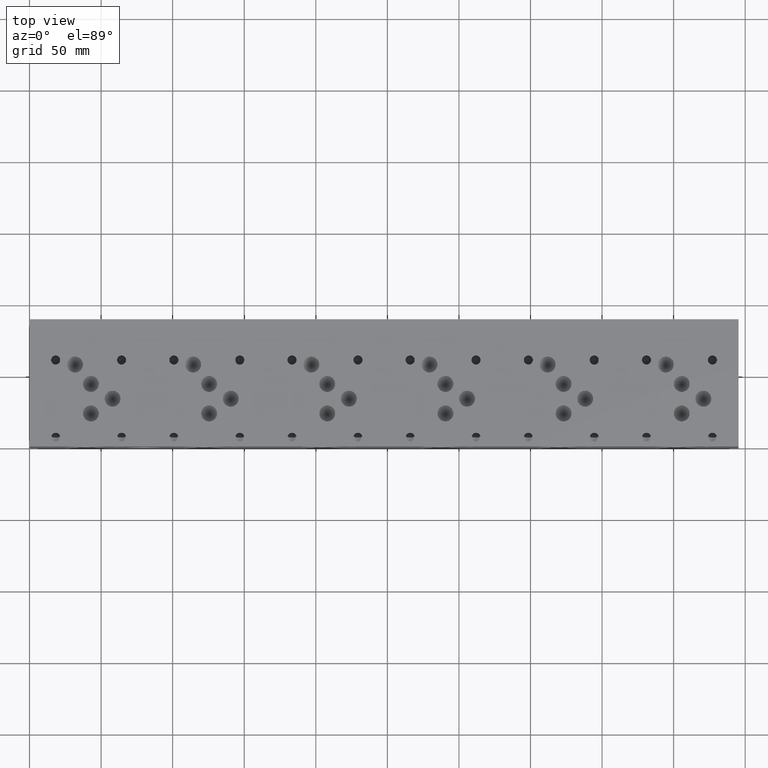
[diagram: clean part render]
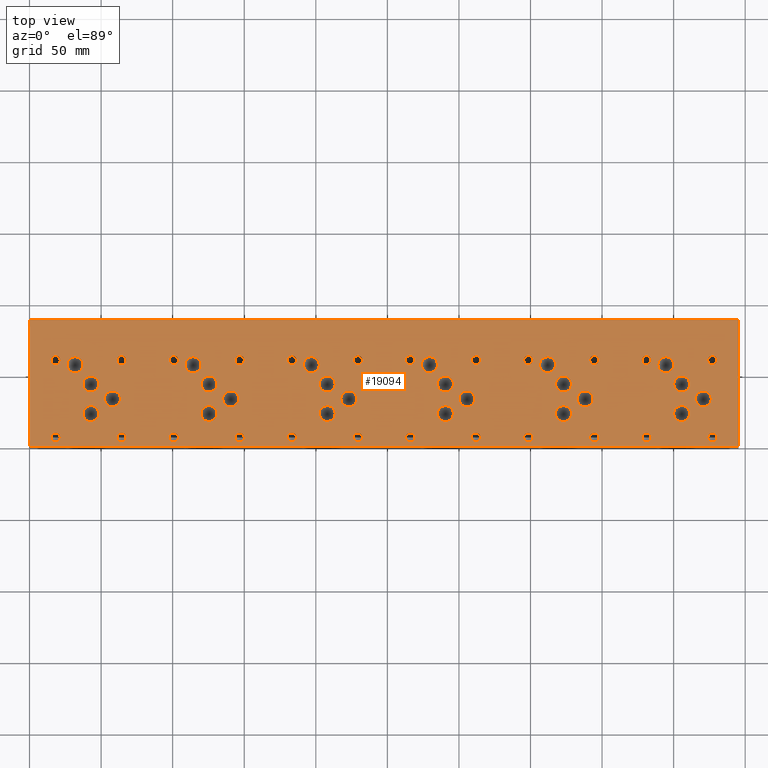
[diagram: same view with one face highlighted and labeled with its STEP entity id]
A machine part, top view. The second image highlights one B-rep face of the part: STEP entity #19094.
In plain terms, the highlighted planar face has unit normal (0, 0, 1).
Its self-contained STEP definition (entity closure, byte-faithful):
#888=CIRCLE('',#20093,3.175);
#889=CIRCLE('',#20094,3.175);
#895=CIRCLE('',#20104,3.175);
#896=CIRCLE('',#20105,3.175);
#902=CIRCLE('',#20115,3.175);
#903=CIRCLE('',#20116,3.175);
#909=CIRCLE('',#20126,3.175);
#910=CIRCLE('',#20127,3.175);
#916=CIRCLE('',#20137,3.175);
#917=CIRCLE('',#20138,3.175);
#923=CIRCLE('',#20148,3.175);
#924=CIRCLE('',#20149,3.175);
#930=CIRCLE('',#20159,3.175);
#931=CIRCLE('',#20160,3.175);
#937=CIRCLE('',#20170,3.175);
#938=CIRCLE('',#20171,3.175);
#944=CIRCLE('',#20181,3.175);
#945=CIRCLE('',#20182,3.175);
#951=CIRCLE('',#20192,3.175);
#952=CIRCLE('',#20193,3.175);
#958=CIRCLE('',#20203,3.175);
#959=CIRCLE('',#20204,3.175);
#965=CIRCLE('',#20214,3.175);
#966=CIRCLE('',#20215,3.175);
#972=CIRCLE('',#20225,3.175);
#973=CIRCLE('',#20226,3.175);
#979=CIRCLE('',#20236,3.175);
#980=CIRCLE('',#20237,3.175);
#986=CIRCLE('',#20247,3.175);
#987=CIRCLE('',#20248,3.175);
#993=CIRCLE('',#20258,3.175);
#994=CIRCLE('',#20259,3.175);
#1000=CIRCLE('',#20269,3.175);
#1001=CIRCLE('',#20270,3.175);
#1007=CIRCLE('',#20280,3.175);
#1008=CIRCLE('',#20281,3.175);
#1014=CIRCLE('',#20291,3.175);
#1015=CIRCLE('',#20292,3.175);
#1021=CIRCLE('',#20302,3.175);
#1022=CIRCLE('',#20303,3.175);
#1025=CIRCLE('',#20309,5.5626);
#1026=CIRCLE('',#20310,5.5626);
#1029=CIRCLE('',#20315,5.5626);
#1030=CIRCLE('',#20316,5.5626);
#1033=CIRCLE('',#20321,5.5626);
#1034=CIRCLE('',#20322,5.5626);
#1037=CIRCLE('',#20327,5.5626);
#1038=CIRCLE('',#20328,5.5626);
#1041=CIRCLE('',#20333,5.5626);
#1042=CIRCLE('',#20334,5.5626);
#1045=CIRCLE('',#20339,5.5626);
#1046=CIRCLE('',#20340,5.5626);
#1049=CIRCLE('',#20345,5.5626);
#1050=CIRCLE('',#20346,5.5626);
#1053=CIRCLE('',#20351,5.5626);
#1054=CIRCLE('',#20352,5.5626);
#1057=CIRCLE('',#20357,5.5626);
#1058=CIRCLE('',#20358,5.5626);
#1061=CIRCLE('',#20363,5.5626);
#1062=CIRCLE('',#20364,5.5626);
#1065=CIRCLE('',#20369,5.5626);
#1066=CIRCLE('',#20370,5.5626);
#1069=CIRCLE('',#20375,5.5626);
#1070=CIRCLE('',#20376,5.5626);
#1073=CIRCLE('',#20381,5.5626);
#1074=CIRCLE('',#20382,5.5626);
#1077=CIRCLE('',#20387,5.5626);
#1078=CIRCLE('',#20388,5.5626);
#1081=CIRCLE('',#20393,5.5626);
#1082=CIRCLE('',#20394,5.5626);
#1085=CIRCLE('',#20399,5.5626);
#1086=CIRCLE('',#20400,5.5626);
#1089=CIRCLE('',#20405,5.5626);
#1090=CIRCLE('',#20406,5.5626);
#1093=CIRCLE('',#20411,5.5626);
#1094=CIRCLE('',#20412,5.5626);
#1097=CIRCLE('',#20417,5.5626);
#1098=CIRCLE('',#20418,5.5626);
#1101=CIRCLE('',#20423,5.5626);
#1102=CIRCLE('',#20424,5.5626);
#1105=CIRCLE('',#20429,5.5626);
#1106=CIRCLE('',#20430,5.5626);
#1109=CIRCLE('',#20435,5.5626);
#1110=CIRCLE('',#20436,5.5626);
#1113=CIRCLE('',#20441,5.5626);
#1114=CIRCLE('',#20442,5.5626);
#1117=CIRCLE('',#20447,5.5626);
#1118=CIRCLE('',#20448,5.5626);
#1124=CIRCLE('',#20457,3.175);
#1125=CIRCLE('',#20458,3.175);
#1131=CIRCLE('',#20468,3.175);
#1132=CIRCLE('',#20469,3.175);
#1138=CIRCLE('',#20479,3.175);
#1139=CIRCLE('',#20480,3.175);
#1145=CIRCLE('',#20490,3.175);
#1146=CIRCLE('',#20491,3.175);
#1753=FACE_BOUND('',#3946,.T.);
#1754=FACE_BOUND('',#3947,.T.);
#1755=FACE_BOUND('',#3948,.T.);
#1756=FACE_BOUND('',#3949,.T.);
#1757=FACE_BOUND('',#3950,.T.);
#1758=FACE_BOUND('',#3951,.T.);
#1759=FACE_BOUND('',#3952,.T.);
#1760=FACE_BOUND('',#3953,.T.);
#1761=FACE_BOUND('',#3954,.T.);
#1762=FACE_BOUND('',#3955,.T.);
#1763=FACE_BOUND('',#3956,.T.);
#1764=FACE_BOUND('',#3957,.T.);
#1765=FACE_BOUND('',#3958,.T.);
#1766=FACE_BOUND('',#3959,.T.);
#1767=FACE_BOUND('',#3960,.T.);
#1768=FACE_BOUND('',#3961,.T.);
#1769=FACE_BOUND('',#3962,.T.);
#1770=FACE_BOUND('',#3963,.T.);
#1771=FACE_BOUND('',#3964,.T.);
#1772=FACE_BOUND('',#3965,.T.);
#1773=FACE_BOUND('',#3966,.T.);
#1774=FACE_BOUND('',#3967,.T.);
#1775=FACE_BOUND('',#3968,.T.);
#1776=FACE_BOUND('',#3969,.T.);
#1777=FACE_BOUND('',#3970,.T.);
#1778=FACE_BOUND('',#3971,.T.);
#1779=FACE_BOUND('',#3972,.T.);
#1780=FACE_BOUND('',#3973,.T.);
#1781=FACE_BOUND('',#3974,.T.);
#1782=FACE_BOUND('',#3975,.T.);
#1783=FACE_BOUND('',#3976,.T.);
#1784=FACE_BOUND('',#3977,.T.);
#1785=FACE_BOUND('',#3978,.T.);
#1786=FACE_BOUND('',#3979,.T.);
#1787=FACE_BOUND('',#3980,.T.);
#1788=FACE_BOUND('',#3981,.T.);
#1789=FACE_BOUND('',#3982,.T.);
#1790=FACE_BOUND('',#3983,.T.);
#1791=FACE_BOUND('',#3984,.T.);
#1792=FACE_BOUND('',#3985,.T.);
#1793=FACE_BOUND('',#3986,.T.);
#1794=FACE_BOUND('',#3987,.T.);
#1795=FACE_BOUND('',#3988,.T.);
#1796=FACE_BOUND('',#3989,.T.);
#1797=FACE_BOUND('',#3990,.T.);
#1798=FACE_BOUND('',#3991,.T.);
#1799=FACE_BOUND('',#3992,.T.);
#1800=FACE_BOUND('',#3993,.T.);
#2798=FACE_OUTER_BOUND('',#3945,.T.);
#3945=EDGE_LOOP('',(#16890,#16891,#16892,#16893));
#3946=EDGE_LOOP('',(#16894,#16895));
#3947=EDGE_LOOP('',(#16896,#16897));
#3948=EDGE_LOOP('',(#16898,#16899));
#3949=EDGE_LOOP('',(#16900,#16901));
#3950=EDGE_LOOP('',(#16902,#16903));
#3951=EDGE_LOOP('',(#16904,#16905));
#3952=EDGE_LOOP('',(#16906,#16907));
#3953=EDGE_LOOP('',(#16908,#16909));
#3954=EDGE_LOOP('',(#16910,#16911));
#3955=EDGE_LOOP('',(#16912,#16913));
#3956=EDGE_LOOP('',(#16914,#16915));
#3957=EDGE_LOOP('',(#16916,#16917));
#3958=EDGE_LOOP('',(#16918,#16919));
#3959=EDGE_LOOP('',(#16920,#16921));
#3960=EDGE_LOOP('',(#16922,#16923));
#3961=EDGE_LOOP('',(#16924,#16925));
#3962=EDGE_LOOP('',(#16926,#16927));
#3963=EDGE_LOOP('',(#16928,#16929));
#3964=EDGE_LOOP('',(#16930,#16931));
#3965=EDGE_LOOP('',(#16932,#16933));
#3966=EDGE_LOOP('',(#16934,#16935));
#3967=EDGE_LOOP('',(#16936,#16937));
#3968=EDGE_LOOP('',(#16938,#16939));
#3969=EDGE_LOOP('',(#16940,#16941));
#3970=EDGE_LOOP('',(#16942,#16943));
#3971=EDGE_LOOP('',(#16944,#16945));
#3972=EDGE_LOOP('',(#16946,#16947));
#3973=EDGE_LOOP('',(#16948,#16949));
#3974=EDGE_LOOP('',(#16950,#16951));
#3975=EDGE_LOOP('',(#16952,#16953));
#3976=EDGE_LOOP('',(#16954,#16955));
#3977=EDGE_LOOP('',(#16956,#16957));
#3978=EDGE_LOOP('',(#16958,#16959));
#3979=EDGE_LOOP('',(#16960,#16961));
#3980=EDGE_LOOP('',(#16962,#16963));
#3981=EDGE_LOOP('',(#16964,#16965));
#3982=EDGE_LOOP('',(#16966,#16967));
#3983=EDGE_LOOP('',(#16968,#16969));
#3984=EDGE_LOOP('',(#16970,#16971));
#3985=EDGE_LOOP('',(#16972,#16973));
#3986=EDGE_LOOP('',(#16974,#16975));
#3987=EDGE_LOOP('',(#16976,#16977));
#3988=EDGE_LOOP('',(#16978,#16979));
#3989=EDGE_LOOP('',(#16980,#16981));
#3990=EDGE_LOOP('',(#16982,#16983));
#3991=EDGE_LOOP('',(#16984,#16985));
#3992=EDGE_LOOP('',(#16986,#16987));
#3993=EDGE_LOOP('',(#16988,#16989));
#4030=LINE('',#24936,#5612);
#5124=LINE('',#30566,#6706);
#5158=LINE('',#30788,#6740);
#5576=LINE('',#33350,#7158);
#5612=VECTOR('',#20562,10.);
#6706=VECTOR('',#22392,10.);
#6740=VECTOR('',#22462,10.);
#7158=VECTOR('',#24852,10.);
#7183=VERTEX_POINT('',#24933);
#7184=VERTEX_POINT('',#24935);
#8216=VERTEX_POINT('',#30564);
#8258=VERTEX_POINT('',#30787);
#8711=VERTEX_POINT('',#32522);
#8712=VERTEX_POINT('',#32523);
#8719=VERTEX_POINT('',#32544);
#8720=VERTEX_POINT('',#32545);
#8727=VERTEX_POINT('',#32566);
#8728=VERTEX_POINT('',#32567);
#8735=VERTEX_POINT('',#32588);
#8736=VERTEX_POINT('',#32589);
#8743=VERTEX_POINT('',#32610);
#8744=VERTEX_POINT('',#32611);
#8751=VERTEX_POINT('',#32632);
#8752=VERTEX_POINT('',#32633);
#8759=VERTEX_POINT('',#32654);
#8760=VERTEX_POINT('',#32655);
#8767=VERTEX_POINT('',#32676);
#8768=VERTEX_POINT('',#32677);
#8775=VERTEX_POINT('',#32698);
#8776=VERTEX_POINT('',#32699);
#8783=VERTEX_POINT('',#32720);
#8784=VERTEX_POINT('',#32721);
#8791=VERTEX_POINT('',#32742);
#8792=VERTEX_POINT('',#32743);
#8799=VERTEX_POINT('',#32764);
#8800=VERTEX_POINT('',#32765);
#8807=VERTEX_POINT('',#32786);
#8808=VERTEX_POINT('',#32787);
#8815=VERTEX_POINT('',#32808);
#8816=VERTEX_POINT('',#32809);
#8823=VERTEX_POINT('',#32830);
#8824=VERTEX_POINT('',#32831);
#8831=VERTEX_POINT('',#32852);
#8832=VERTEX_POINT('',#32853);
#8839=VERTEX_POINT('',#32874);
#8840=VERTEX_POINT('',#32875);
#8847=VERTEX_POINT('',#32896);
#8848=VERTEX_POINT('',#32897);
#8855=VERTEX_POINT('',#32918);
#8856=VERTEX_POINT('',#32919);
#8863=VERTEX_POINT('',#32940);
#8864=VERTEX_POINT('',#32941);
#8868=VERTEX_POINT('',#32955);
#8869=VERTEX_POINT('',#32956);
#8873=VERTEX_POINT('',#32968);
#8874=VERTEX_POINT('',#32969);
#8878=VERTEX_POINT('',#32981);
#8879=VERTEX_POINT('',#32982);
#8883=VERTEX_POINT('',#32994);
#8884=VERTEX_POINT('',#32995);
#8888=VERTEX_POINT('',#33007);
#8889=VERTEX_POINT('',#33008);
#8893=VERTEX_POINT('',#33020);
#8894=VERTEX_POINT('',#33021);
#8898=VERTEX_POINT('',#33033);
#8899=VERTEX_POINT('',#33034);
#8903=VERTEX_POINT('',#33046);
#8904=VERTEX_POINT('',#33047);
#8908=VERTEX_POINT('',#33059);
#8909=VERTEX_POINT('',#33060);
#8913=VERTEX_POINT('',#33072);
#8914=VERTEX_POINT('',#33073);
#8918=VERTEX_POINT('',#33085);
#8919=VERTEX_POINT('',#33086);
#8923=VERTEX_POINT('',#33098);
#8924=VERTEX_POINT('',#33099);
#8928=VERTEX_POINT('',#33111);
#8929=VERTEX_POINT('',#33112);
#8933=VERTEX_POINT('',#33124);
#8934=VERTEX_POINT('',#33125);
#8938=VERTEX_POINT('',#33137);
#8939=VERTEX_POINT('',#33138);
#8943=VERTEX_POINT('',#33150);
#8944=VERTEX_POINT('',#33151);
#8948=VERTEX_POINT('',#33163);
#8949=VERTEX_POINT('',#33164);
#8953=VERTEX_POINT('',#33176);
#8954=VERTEX_POINT('',#33177);
#8958=VERTEX_POINT('',#33189);
#8959=VERTEX_POINT('',#33190);
#8963=VERTEX_POINT('',#33202);
#8964=VERTEX_POINT('',#33203);
#8968=VERTEX_POINT('',#33215);
#8969=VERTEX_POINT('',#33216);
#8973=VERTEX_POINT('',#33228);
#8974=VERTEX_POINT('',#33229);
#8978=VERTEX_POINT('',#33241);
#8979=VERTEX_POINT('',#33242);
#8983=VERTEX_POINT('',#33254);
#8984=VERTEX_POINT('',#33255);
#8991=VERTEX_POINT('',#33274);
#8992=VERTEX_POINT('',#33275);
#8999=VERTEX_POINT('',#33296);
#9000=VERTEX_POINT('',#33297);
#9007=VERTEX_POINT('',#33318);
#9008=VERTEX_POINT('',#33319);
#9015=VERTEX_POINT('',#33340);
#9016=VERTEX_POINT('',#33341);
#9052=EDGE_CURVE('',#7184,#7183,#4030,.T.);
#10570=EDGE_CURVE('',#7183,#8216,#5124,.T.);
#10628=EDGE_CURVE('',#8258,#7184,#5158,.T.);
#11296=EDGE_CURVE('',#8711,#8712,#888,.T.);
#11297=EDGE_CURVE('',#8712,#8711,#889,.T.);
#11306=EDGE_CURVE('',#8719,#8720,#895,.T.);
#11307=EDGE_CURVE('',#8720,#8719,#896,.T.);
#11316=EDGE_CURVE('',#8727,#8728,#902,.T.);
#11317=EDGE_CURVE('',#8728,#8727,#903,.T.);
#11326=EDGE_CURVE('',#8735,#8736,#909,.T.);
#11327=EDGE_CURVE('',#8736,#8735,#910,.T.);
#11336=EDGE_CURVE('',#8743,#8744,#916,.T.);
#11337=EDGE_CURVE('',#8744,#8743,#917,.T.);
#11346=EDGE_CURVE('',#8751,#8752,#923,.T.);
#11347=EDGE_CURVE('',#8752,#8751,#924,.T.);
#11356=EDGE_CURVE('',#8759,#8760,#930,.T.);
#11357=EDGE_CURVE('',#8760,#8759,#931,.T.);
#11366=EDGE_CURVE('',#8767,#8768,#937,.T.);
#11367=EDGE_CURVE('',#8768,#8767,#938,.T.);
#11376=EDGE_CURVE('',#8775,#8776,#944,.T.);
#11377=EDGE_CURVE('',#8776,#8775,#945,.T.);
#11386=EDGE_CURVE('',#8783,#8784,#951,.T.);
#11387=EDGE_CURVE('',#8784,#8783,#952,.T.);
#11396=EDGE_CURVE('',#8791,#8792,#958,.T.);
#11397=EDGE_CURVE('',#8792,#8791,#959,.T.);
#11406=EDGE_CURVE('',#8799,#8800,#965,.T.);
#11407=EDGE_CURVE('',#8800,#8799,#966,.T.);
#11416=EDGE_CURVE('',#8807,#8808,#972,.T.);
#11417=EDGE_CURVE('',#8808,#8807,#973,.T.);
#11426=EDGE_CURVE('',#8815,#8816,#979,.T.);
#11427=EDGE_CURVE('',#8816,#8815,#980,.T.);
#11436=EDGE_CURVE('',#8823,#8824,#986,.T.);
#11437=EDGE_CURVE('',#8824,#8823,#987,.T.);
#11446=EDGE_CURVE('',#8831,#8832,#993,.T.);
#11447=EDGE_CURVE('',#8832,#8831,#994,.T.);
#11456=EDGE_CURVE('',#8839,#8840,#1000,.T.);
#11457=EDGE_CURVE('',#8840,#8839,#1001,.T.);
#11466=EDGE_CURVE('',#8847,#8848,#1007,.T.);
#11467=EDGE_CURVE('',#8848,#8847,#1008,.T.);
#11476=EDGE_CURVE('',#8855,#8856,#1014,.T.);
#11477=EDGE_CURVE('',#8856,#8855,#1015,.T.);
#11486=EDGE_CURVE('',#8863,#8864,#1021,.T.);
#11487=EDGE_CURVE('',#8864,#8863,#1022,.T.);
#11493=EDGE_CURVE('',#8868,#8869,#1025,.T.);
#11494=EDGE_CURVE('',#8869,#8868,#1026,.T.);
#11499=EDGE_CURVE('',#8873,#8874,#1029,.T.);
#11500=EDGE_CURVE('',#8874,#8873,#1030,.T.);
#11505=EDGE_CURVE('',#8878,#8879,#1033,.T.);
#11506=EDGE_CURVE('',#8879,#8878,#1034,.T.);
#11511=EDGE_CURVE('',#8883,#8884,#1037,.T.);
#11512=EDGE_CURVE('',#8884,#8883,#1038,.T.);
#11517=EDGE_CURVE('',#8888,#8889,#1041,.T.);
#11518=EDGE_CURVE('',#8889,#8888,#1042,.T.);
#11523=EDGE_CURVE('',#8893,#8894,#1045,.T.);
#11524=EDGE_CURVE('',#8894,#8893,#1046,.T.);
#11529=EDGE_CURVE('',#8898,#8899,#1049,.T.);
#11530=EDGE_CURVE('',#8899,#8898,#1050,.T.);
#11535=EDGE_CURVE('',#8903,#8904,#1053,.T.);
#11536=EDGE_CURVE('',#8904,#8903,#1054,.T.);
#11541=EDGE_CURVE('',#8908,#8909,#1057,.T.);
#11542=EDGE_CURVE('',#8909,#8908,#1058,.T.);
#11547=EDGE_CURVE('',#8913,#8914,#1061,.T.);
#11548=EDGE_CURVE('',#8914,#8913,#1062,.T.);
#11553=EDGE_CURVE('',#8918,#8919,#1065,.T.);
#11554=EDGE_CURVE('',#8919,#8918,#1066,.T.);
#11559=EDGE_CURVE('',#8923,#8924,#1069,.T.);
#11560=EDGE_CURVE('',#8924,#8923,#1070,.T.);
#11565=EDGE_CURVE('',#8928,#8929,#1073,.T.);
#11566=EDGE_CURVE('',#8929,#8928,#1074,.T.);
#11571=EDGE_CURVE('',#8933,#8934,#1077,.T.);
#11572=EDGE_CURVE('',#8934,#8933,#1078,.T.);
#11577=EDGE_CURVE('',#8938,#8939,#1081,.T.);
#11578=EDGE_CURVE('',#8939,#8938,#1082,.T.);
#11583=EDGE_CURVE('',#8943,#8944,#1085,.T.);
#11584=EDGE_CURVE('',#8944,#8943,#1086,.T.);
#11589=EDGE_CURVE('',#8948,#8949,#1089,.T.);
#11590=EDGE_CURVE('',#8949,#8948,#1090,.T.);
#11595=EDGE_CURVE('',#8953,#8954,#1093,.T.);
#11596=EDGE_CURVE('',#8954,#8953,#1094,.T.);
#11601=EDGE_CURVE('',#8958,#8959,#1097,.T.);
#11602=EDGE_CURVE('',#8959,#8958,#1098,.T.);
#11607=EDGE_CURVE('',#8963,#8964,#1101,.T.);
#11608=EDGE_CURVE('',#8964,#8963,#1102,.T.);
#11613=EDGE_CURVE('',#8968,#8969,#1105,.T.);
#11614=EDGE_CURVE('',#8969,#8968,#1106,.T.);
#11619=EDGE_CURVE('',#8973,#8974,#1109,.T.);
#11620=EDGE_CURVE('',#8974,#8973,#1110,.T.);
#11625=EDGE_CURVE('',#8978,#8979,#1113,.T.);
#11626=EDGE_CURVE('',#8979,#8978,#1114,.T.);
#11631=EDGE_CURVE('',#8983,#8984,#1117,.T.);
#11632=EDGE_CURVE('',#8984,#8983,#1118,.T.);
#11640=EDGE_CURVE('',#8991,#8992,#1124,.T.);
#11641=EDGE_CURVE('',#8992,#8991,#1125,.T.);
#11650=EDGE_CURVE('',#8999,#9000,#1131,.T.);
#11651=EDGE_CURVE('',#9000,#8999,#1132,.T.);
#11660=EDGE_CURVE('',#9007,#9008,#1138,.T.);
#11661=EDGE_CURVE('',#9008,#9007,#1139,.T.);
#11670=EDGE_CURVE('',#9015,#9016,#1145,.T.);
#11671=EDGE_CURVE('',#9016,#9015,#1146,.T.);
#11675=EDGE_CURVE('',#8216,#8258,#5576,.T.);
#16890=ORIENTED_EDGE('',*,*,#9052,.T.);
#16891=ORIENTED_EDGE('',*,*,#10570,.T.);
#16892=ORIENTED_EDGE('',*,*,#11675,.T.);
#16893=ORIENTED_EDGE('',*,*,#10628,.T.);
#16894=ORIENTED_EDGE('',*,*,#11296,.T.);
#16895=ORIENTED_EDGE('',*,*,#11297,.T.);
#16896=ORIENTED_EDGE('',*,*,#11306,.T.);
#16897=ORIENTED_EDGE('',*,*,#11307,.T.);
#16898=ORIENTED_EDGE('',*,*,#11316,.T.);
#16899=ORIENTED_EDGE('',*,*,#11317,.T.);
#16900=ORIENTED_EDGE('',*,*,#11326,.T.);
#16901=ORIENTED_EDGE('',*,*,#11327,.T.);
#16902=ORIENTED_EDGE('',*,*,#11336,.T.);
#16903=ORIENTED_EDGE('',*,*,#11337,.T.);
#16904=ORIENTED_EDGE('',*,*,#11346,.T.);
#16905=ORIENTED_EDGE('',*,*,#11347,.T.);
#16906=ORIENTED_EDGE('',*,*,#11356,.T.);
#16907=ORIENTED_EDGE('',*,*,#11357,.T.);
#16908=ORIENTED_EDGE('',*,*,#11366,.T.);
#16909=ORIENTED_EDGE('',*,*,#11367,.T.);
#16910=ORIENTED_EDGE('',*,*,#11376,.T.);
#16911=ORIENTED_EDGE('',*,*,#11377,.T.);
#16912=ORIENTED_EDGE('',*,*,#11386,.T.);
#16913=ORIENTED_EDGE('',*,*,#11387,.T.);
#16914=ORIENTED_EDGE('',*,*,#11396,.T.);
#16915=ORIENTED_EDGE('',*,*,#11397,.T.);
#16916=ORIENTED_EDGE('',*,*,#11406,.T.);
#16917=ORIENTED_EDGE('',*,*,#11407,.T.);
#16918=ORIENTED_EDGE('',*,*,#11416,.T.);
#16919=ORIENTED_EDGE('',*,*,#11417,.T.);
#16920=ORIENTED_EDGE('',*,*,#11426,.T.);
#16921=ORIENTED_EDGE('',*,*,#11427,.T.);
#16922=ORIENTED_EDGE('',*,*,#11436,.T.);
#16923=ORIENTED_EDGE('',*,*,#11437,.T.);
#16924=ORIENTED_EDGE('',*,*,#11446,.T.);
#16925=ORIENTED_EDGE('',*,*,#11447,.T.);
#16926=ORIENTED_EDGE('',*,*,#11456,.T.);
#16927=ORIENTED_EDGE('',*,*,#11457,.T.);
#16928=ORIENTED_EDGE('',*,*,#11466,.T.);
#16929=ORIENTED_EDGE('',*,*,#11467,.T.);
#16930=ORIENTED_EDGE('',*,*,#11476,.T.);
#16931=ORIENTED_EDGE('',*,*,#11477,.T.);
#16932=ORIENTED_EDGE('',*,*,#11486,.T.);
#16933=ORIENTED_EDGE('',*,*,#11487,.T.);
#16934=ORIENTED_EDGE('',*,*,#11493,.T.);
#16935=ORIENTED_EDGE('',*,*,#11494,.T.);
#16936=ORIENTED_EDGE('',*,*,#11499,.T.);
#16937=ORIENTED_EDGE('',*,*,#11500,.T.);
#16938=ORIENTED_EDGE('',*,*,#11505,.T.);
#16939=ORIENTED_EDGE('',*,*,#11506,.T.);
#16940=ORIENTED_EDGE('',*,*,#11511,.T.);
#16941=ORIENTED_EDGE('',*,*,#11512,.T.);
#16942=ORIENTED_EDGE('',*,*,#11517,.T.);
#16943=ORIENTED_EDGE('',*,*,#11518,.T.);
#16944=ORIENTED_EDGE('',*,*,#11523,.T.);
#16945=ORIENTED_EDGE('',*,*,#11524,.T.);
#16946=ORIENTED_EDGE('',*,*,#11529,.T.);
#16947=ORIENTED_EDGE('',*,*,#11530,.T.);
#16948=ORIENTED_EDGE('',*,*,#11535,.T.);
#16949=ORIENTED_EDGE('',*,*,#11536,.T.);
#16950=ORIENTED_EDGE('',*,*,#11541,.T.);
#16951=ORIENTED_EDGE('',*,*,#11542,.T.);
#16952=ORIENTED_EDGE('',*,*,#11547,.T.);
#16953=ORIENTED_EDGE('',*,*,#11548,.T.);
#16954=ORIENTED_EDGE('',*,*,#11553,.T.);
#16955=ORIENTED_EDGE('',*,*,#11554,.T.);
#16956=ORIENTED_EDGE('',*,*,#11559,.T.);
#16957=ORIENTED_EDGE('',*,*,#11560,.T.);
#16958=ORIENTED_EDGE('',*,*,#11565,.T.);
#16959=ORIENTED_EDGE('',*,*,#11566,.T.);
#16960=ORIENTED_EDGE('',*,*,#11571,.T.);
#16961=ORIENTED_EDGE('',*,*,#11572,.T.);
#16962=ORIENTED_EDGE('',*,*,#11577,.T.);
#16963=ORIENTED_EDGE('',*,*,#11578,.T.);
#16964=ORIENTED_EDGE('',*,*,#11583,.T.);
#16965=ORIENTED_EDGE('',*,*,#11584,.T.);
#16966=ORIENTED_EDGE('',*,*,#11589,.T.);
#16967=ORIENTED_EDGE('',*,*,#11590,.T.);
#16968=ORIENTED_EDGE('',*,*,#11595,.T.);
#16969=ORIENTED_EDGE('',*,*,#11596,.T.);
#16970=ORIENTED_EDGE('',*,*,#11601,.T.);
#16971=ORIENTED_EDGE('',*,*,#11602,.T.);
#16972=ORIENTED_EDGE('',*,*,#11607,.T.);
#16973=ORIENTED_EDGE('',*,*,#11608,.T.);
#16974=ORIENTED_EDGE('',*,*,#11613,.T.);
#16975=ORIENTED_EDGE('',*,*,#11614,.T.);
#16976=ORIENTED_EDGE('',*,*,#11619,.T.);
#16977=ORIENTED_EDGE('',*,*,#11620,.T.);
#16978=ORIENTED_EDGE('',*,*,#11625,.T.);
#16979=ORIENTED_EDGE('',*,*,#11626,.T.);
#16980=ORIENTED_EDGE('',*,*,#11631,.T.);
#16981=ORIENTED_EDGE('',*,*,#11632,.T.);
#16982=ORIENTED_EDGE('',*,*,#11640,.T.);
#16983=ORIENTED_EDGE('',*,*,#11641,.T.);
#16984=ORIENTED_EDGE('',*,*,#11650,.T.);
#16985=ORIENTED_EDGE('',*,*,#11651,.T.);
#16986=ORIENTED_EDGE('',*,*,#11660,.T.);
#16987=ORIENTED_EDGE('',*,*,#11661,.T.);
#16988=ORIENTED_EDGE('',*,*,#11670,.T.);
#16989=ORIENTED_EDGE('',*,*,#11671,.T.);
#17477=PLANE('',#20497);
#19094=ADVANCED_FACE('',(#2798,#1753,#1754,#1755,#1756,#1757,#1758,#1759,
#1760,#1761,#1762,#1763,#1764,#1765,#1766,#1767,#1768,#1769,#1770,#1771,
#1772,#1773,#1774,#1775,#1776,#1777,#1778,#1779,#1780,#1781,#1782,#1783,
#1784,#1785,#1786,#1787,#1788,#1789,#1790,#1791,#1792,#1793,#1794,#1795,
#1796,#1797,#1798,#1799,#1800),#17477,.T.);
#20093=AXIS2_PLACEMENT_3D('',#32524,#23928,#23929);
#20094=AXIS2_PLACEMENT_3D('',#32525,#23930,#23931);
#20104=AXIS2_PLACEMENT_3D('',#32546,#23953,#23954);
#20105=AXIS2_PLACEMENT_3D('',#32547,#23955,#23956);
#20115=AXIS2_PLACEMENT_3D('',#32568,#23978,#23979);
#20116=AXIS2_PLACEMENT_3D('',#32569,#23980,#23981);
#20126=AXIS2_PLACEMENT_3D('',#32590,#24003,#24004);
#20127=AXIS2_PLACEMENT_3D('',#32591,#24005,#24006);
#20137=AXIS2_PLACEMENT_3D('',#32612,#24028,#24029);
#20138=AXIS2_PLACEMENT_3D('',#32613,#24030,#24031);
#20148=AXIS2_PLACEMENT_3D('',#32634,#24053,#24054);
#20149=AXIS2_PLACEMENT_3D('',#32635,#24055,#24056);
#20159=AXIS2_PLACEMENT_3D('',#32656,#24078,#24079);
#20160=AXIS2_PLACEMENT_3D('',#32657,#24080,#24081);
#20170=AXIS2_PLACEMENT_3D('',#32678,#24103,#24104);
#20171=AXIS2_PLACEMENT_3D('',#32679,#24105,#24106);
#20181=AXIS2_PLACEMENT_3D('',#32700,#24128,#24129);
#20182=AXIS2_PLACEMENT_3D('',#32701,#24130,#24131);
#20192=AXIS2_PLACEMENT_3D('',#32722,#24153,#24154);
#20193=AXIS2_PLACEMENT_3D('',#32723,#24155,#24156);
#20203=AXIS2_PLACEMENT_3D('',#32744,#24178,#24179);
#20204=AXIS2_PLACEMENT_3D('',#32745,#24180,#24181);
#20214=AXIS2_PLACEMENT_3D('',#32766,#24203,#24204);
#20215=AXIS2_PLACEMENT_3D('',#32767,#24205,#24206);
#20225=AXIS2_PLACEMENT_3D('',#32788,#24228,#24229);
#20226=AXIS2_PLACEMENT_3D('',#32789,#24230,#24231);
#20236=AXIS2_PLACEMENT_3D('',#32810,#24253,#24254);
#20237=AXIS2_PLACEMENT_3D('',#32811,#24255,#24256);
#20247=AXIS2_PLACEMENT_3D('',#32832,#24278,#24279);
#20248=AXIS2_PLACEMENT_3D('',#32833,#24280,#24281);
#20258=AXIS2_PLACEMENT_3D('',#32854,#24303,#24304);
#20259=AXIS2_PLACEMENT_3D('',#32855,#24305,#24306);
#20269=AXIS2_PLACEMENT_3D('',#32876,#24328,#24329);
#20270=AXIS2_PLACEMENT_3D('',#32877,#24330,#24331);
#20280=AXIS2_PLACEMENT_3D('',#32898,#24353,#24354);
#20281=AXIS2_PLACEMENT_3D('',#32899,#24355,#24356);
#20291=AXIS2_PLACEMENT_3D('',#32920,#24378,#24379);
#20292=AXIS2_PLACEMENT_3D('',#32921,#24380,#24381);
#20302=AXIS2_PLACEMENT_3D('',#32942,#24403,#24404);
#20303=AXIS2_PLACEMENT_3D('',#32943,#24405,#24406);
#20309=AXIS2_PLACEMENT_3D('',#32957,#24420,#24421);
#20310=AXIS2_PLACEMENT_3D('',#32958,#24422,#24423);
#20315=AXIS2_PLACEMENT_3D('',#32970,#24434,#24435);
#20316=AXIS2_PLACEMENT_3D('',#32971,#24436,#24437);
#20321=AXIS2_PLACEMENT_3D('',#32983,#24448,#24449);
#20322=AXIS2_PLACEMENT_3D('',#32984,#24450,#24451);
#20327=AXIS2_PLACEMENT_3D('',#32996,#24462,#24463);
#20328=AXIS2_PLACEMENT_3D('',#32997,#24464,#24465);
#20333=AXIS2_PLACEMENT_3D('',#33009,#24476,#24477);
#20334=AXIS2_PLACEMENT_3D('',#33010,#24478,#24479);
#20339=AXIS2_PLACEMENT_3D('',#33022,#24490,#24491);
#20340=AXIS2_PLACEMENT_3D('',#33023,#24492,#24493);
#20345=AXIS2_PLACEMENT_3D('',#33035,#24504,#24505);
#20346=AXIS2_PLACEMENT_3D('',#33036,#24506,#24507);
#20351=AXIS2_PLACEMENT_3D('',#33048,#24518,#24519);
#20352=AXIS2_PLACEMENT_3D('',#33049,#24520,#24521);
#20357=AXIS2_PLACEMENT_3D('',#33061,#24532,#24533);
#20358=AXIS2_PLACEMENT_3D('',#33062,#24534,#24535);
#20363=AXIS2_PLACEMENT_3D('',#33074,#24546,#24547);
#20364=AXIS2_PLACEMENT_3D('',#33075,#24548,#24549);
#20369=AXIS2_PLACEMENT_3D('',#33087,#24560,#24561);
#20370=AXIS2_PLACEMENT_3D('',#33088,#24562,#24563);
#20375=AXIS2_PLACEMENT_3D('',#33100,#24574,#24575);
#20376=AXIS2_PLACEMENT_3D('',#33101,#24576,#24577);
#20381=AXIS2_PLACEMENT_3D('',#33113,#24588,#24589);
#20382=AXIS2_PLACEMENT_3D('',#33114,#24590,#24591);
#20387=AXIS2_PLACEMENT_3D('',#33126,#24602,#24603);
#20388=AXIS2_PLACEMENT_3D('',#33127,#24604,#24605);
#20393=AXIS2_PLACEMENT_3D('',#33139,#24616,#24617);
#20394=AXIS2_PLACEMENT_3D('',#33140,#24618,#24619);
#20399=AXIS2_PLACEMENT_3D('',#33152,#24630,#24631);
#20400=AXIS2_PLACEMENT_3D('',#33153,#24632,#24633);
#20405=AXIS2_PLACEMENT_3D('',#33165,#24644,#24645);
#20406=AXIS2_PLACEMENT_3D('',#33166,#24646,#24647);
#20411=AXIS2_PLACEMENT_3D('',#33178,#24658,#24659);
#20412=AXIS2_PLACEMENT_3D('',#33179,#24660,#24661);
#20417=AXIS2_PLACEMENT_3D('',#33191,#24672,#24673);
#20418=AXIS2_PLACEMENT_3D('',#33192,#24674,#24675);
#20423=AXIS2_PLACEMENT_3D('',#33204,#24686,#24687);
#20424=AXIS2_PLACEMENT_3D('',#33205,#24688,#24689);
#20429=AXIS2_PLACEMENT_3D('',#33217,#24700,#24701);
#20430=AXIS2_PLACEMENT_3D('',#33218,#24702,#24703);
#20435=AXIS2_PLACEMENT_3D('',#33230,#24714,#24715);
#20436=AXIS2_PLACEMENT_3D('',#33231,#24716,#24717);
#20441=AXIS2_PLACEMENT_3D('',#33243,#24728,#24729);
#20442=AXIS2_PLACEMENT_3D('',#33244,#24730,#24731);
#20447=AXIS2_PLACEMENT_3D('',#33256,#24742,#24743);
#20448=AXIS2_PLACEMENT_3D('',#33257,#24744,#24745);
#20457=AXIS2_PLACEMENT_3D('',#33276,#24764,#24765);
#20458=AXIS2_PLACEMENT_3D('',#33277,#24766,#24767);
#20468=AXIS2_PLACEMENT_3D('',#33298,#24789,#24790);
#20469=AXIS2_PLACEMENT_3D('',#33299,#24791,#24792);
#20479=AXIS2_PLACEMENT_3D('',#33320,#24814,#24815);
#20480=AXIS2_PLACEMENT_3D('',#33321,#24816,#24817);
#20490=AXIS2_PLACEMENT_3D('',#33342,#24839,#24840);
#20491=AXIS2_PLACEMENT_3D('',#33343,#24841,#24842);
#20497=AXIS2_PLACEMENT_3D('',#33353,#24857,#24858);
#20562=DIRECTION('',(1.,0.,0.));
#22392=DIRECTION('',(0.,1.,0.));
#22462=DIRECTION('',(0.,-1.,0.));
#23928=DIRECTION('center_axis',(0.,0.,-1.));
#23929=DIRECTION('ref_axis',(1.,0.,0.));
#23930=DIRECTION('center_axis',(0.,0.,-1.));
#23931=DIRECTION('ref_axis',(1.,0.,0.));
#23953=DIRECTION('center_axis',(0.,0.,-1.));
#23954=DIRECTION('ref_axis',(1.,0.,0.));
#23955=DIRECTION('center_axis',(0.,0.,-1.));
#23956=DIRECTION('ref_axis',(1.,0.,0.));
#23978=DIRECTION('center_axis',(0.,0.,-1.));
#23979=DIRECTION('ref_axis',(1.,0.,0.));
#23980=DIRECTION('center_axis',(0.,0.,-1.));
#23981=DIRECTION('ref_axis',(1.,0.,0.));
#24003=DIRECTION('center_axis',(0.,0.,-1.));
#24004=DIRECTION('ref_axis',(1.,0.,0.));
#24005=DIRECTION('center_axis',(0.,0.,-1.));
#24006=DIRECTION('ref_axis',(1.,0.,0.));
#24028=DIRECTION('center_axis',(0.,0.,-1.));
#24029=DIRECTION('ref_axis',(1.,0.,0.));
#24030=DIRECTION('center_axis',(0.,0.,-1.));
#24031=DIRECTION('ref_axis',(1.,0.,0.));
#24053=DIRECTION('center_axis',(0.,0.,-1.));
#24054=DIRECTION('ref_axis',(1.,0.,0.));
#24055=DIRECTION('center_axis',(0.,0.,-1.));
#24056=DIRECTION('ref_axis',(1.,0.,0.));
#24078=DIRECTION('center_axis',(0.,0.,-1.));
#24079=DIRECTION('ref_axis',(1.,0.,0.));
#24080=DIRECTION('center_axis',(0.,0.,-1.));
#24081=DIRECTION('ref_axis',(1.,0.,0.));
#24103=DIRECTION('center_axis',(0.,0.,-1.));
#24104=DIRECTION('ref_axis',(1.,0.,0.));
#24105=DIRECTION('center_axis',(0.,0.,-1.));
#24106=DIRECTION('ref_axis',(1.,0.,0.));
#24128=DIRECTION('center_axis',(0.,0.,-1.));
#24129=DIRECTION('ref_axis',(1.,0.,0.));
#24130=DIRECTION('center_axis',(0.,0.,-1.));
#24131=DIRECTION('ref_axis',(1.,0.,0.));
#24153=DIRECTION('center_axis',(0.,0.,-1.));
#24154=DIRECTION('ref_axis',(1.,0.,0.));
#24155=DIRECTION('center_axis',(0.,0.,-1.));
#24156=DIRECTION('ref_axis',(1.,0.,0.));
#24178=DIRECTION('center_axis',(0.,0.,-1.));
#24179=DIRECTION('ref_axis',(1.,0.,0.));
#24180=DIRECTION('center_axis',(0.,0.,-1.));
#24181=DIRECTION('ref_axis',(1.,0.,0.));
#24203=DIRECTION('center_axis',(0.,0.,-1.));
#24204=DIRECTION('ref_axis',(1.,0.,0.));
#24205=DIRECTION('center_axis',(0.,0.,-1.));
#24206=DIRECTION('ref_axis',(1.,0.,0.));
#24228=DIRECTION('center_axis',(0.,0.,-1.));
#24229=DIRECTION('ref_axis',(1.,0.,0.));
#24230=DIRECTION('center_axis',(0.,0.,-1.));
#24231=DIRECTION('ref_axis',(1.,0.,0.));
#24253=DIRECTION('center_axis',(0.,0.,-1.));
#24254=DIRECTION('ref_axis',(1.,0.,0.));
#24255=DIRECTION('center_axis',(0.,0.,-1.));
#24256=DIRECTION('ref_axis',(1.,0.,0.));
#24278=DIRECTION('center_axis',(0.,0.,-1.));
#24279=DIRECTION('ref_axis',(1.,0.,0.));
#24280=DIRECTION('center_axis',(0.,0.,-1.));
#24281=DIRECTION('ref_axis',(1.,0.,0.));
#24303=DIRECTION('center_axis',(0.,0.,-1.));
#24304=DIRECTION('ref_axis',(1.,0.,0.));
#24305=DIRECTION('center_axis',(0.,0.,-1.));
#24306=DIRECTION('ref_axis',(1.,0.,0.));
#24328=DIRECTION('center_axis',(0.,0.,-1.));
#24329=DIRECTION('ref_axis',(1.,0.,0.));
#24330=DIRECTION('center_axis',(0.,0.,-1.));
#24331=DIRECTION('ref_axis',(1.,0.,0.));
#24353=DIRECTION('center_axis',(0.,0.,-1.));
#24354=DIRECTION('ref_axis',(1.,0.,0.));
#24355=DIRECTION('center_axis',(0.,0.,-1.));
#24356=DIRECTION('ref_axis',(1.,0.,0.));
#24378=DIRECTION('center_axis',(0.,0.,-1.));
#24379=DIRECTION('ref_axis',(1.,0.,0.));
#24380=DIRECTION('center_axis',(0.,0.,-1.));
#24381=DIRECTION('ref_axis',(1.,0.,0.));
#24403=DIRECTION('center_axis',(0.,0.,-1.));
#24404=DIRECTION('ref_axis',(1.,0.,0.));
#24405=DIRECTION('center_axis',(0.,0.,-1.));
#24406=DIRECTION('ref_axis',(1.,0.,0.));
#24420=DIRECTION('center_axis',(0.,0.,-1.));
#24421=DIRECTION('ref_axis',(1.,0.,0.));
#24422=DIRECTION('center_axis',(0.,0.,-1.));
#24423=DIRECTION('ref_axis',(1.,0.,0.));
#24434=DIRECTION('center_axis',(0.,0.,-1.));
#24435=DIRECTION('ref_axis',(1.,0.,0.));
#24436=DIRECTION('center_axis',(0.,0.,-1.));
#24437=DIRECTION('ref_axis',(1.,0.,0.));
#24448=DIRECTION('center_axis',(0.,0.,-1.));
#24449=DIRECTION('ref_axis',(1.,0.,0.));
#24450=DIRECTION('center_axis',(0.,0.,-1.));
#24451=DIRECTION('ref_axis',(1.,0.,0.));
#24462=DIRECTION('center_axis',(0.,0.,-1.));
#24463=DIRECTION('ref_axis',(1.,0.,0.));
#24464=DIRECTION('center_axis',(0.,0.,-1.));
#24465=DIRECTION('ref_axis',(1.,0.,0.));
#24476=DIRECTION('center_axis',(0.,0.,-1.));
#24477=DIRECTION('ref_axis',(1.,0.,0.));
#24478=DIRECTION('center_axis',(0.,0.,-1.));
#24479=DIRECTION('ref_axis',(1.,0.,0.));
#24490=DIRECTION('center_axis',(0.,0.,-1.));
#24491=DIRECTION('ref_axis',(1.,0.,0.));
#24492=DIRECTION('center_axis',(0.,0.,-1.));
#24493=DIRECTION('ref_axis',(1.,0.,0.));
#24504=DIRECTION('center_axis',(0.,0.,-1.));
#24505=DIRECTION('ref_axis',(1.,0.,0.));
#24506=DIRECTION('center_axis',(0.,0.,-1.));
#24507=DIRECTION('ref_axis',(1.,0.,0.));
#24518=DIRECTION('center_axis',(0.,0.,-1.));
#24519=DIRECTION('ref_axis',(1.,0.,0.));
#24520=DIRECTION('center_axis',(0.,0.,-1.));
#24521=DIRECTION('ref_axis',(1.,0.,0.));
#24532=DIRECTION('center_axis',(0.,0.,-1.));
#24533=DIRECTION('ref_axis',(1.,0.,0.));
#24534=DIRECTION('center_axis',(0.,0.,-1.));
#24535=DIRECTION('ref_axis',(1.,0.,0.));
#24546=DIRECTION('center_axis',(0.,0.,-1.));
#24547=DIRECTION('ref_axis',(1.,0.,0.));
#24548=DIRECTION('center_axis',(0.,0.,-1.));
#24549=DIRECTION('ref_axis',(1.,0.,0.));
#24560=DIRECTION('center_axis',(0.,0.,-1.));
#24561=DIRECTION('ref_axis',(1.,0.,0.));
#24562=DIRECTION('center_axis',(0.,0.,-1.));
#24563=DIRECTION('ref_axis',(1.,0.,0.));
#24574=DIRECTION('center_axis',(0.,0.,-1.));
#24575=DIRECTION('ref_axis',(1.,0.,0.));
#24576=DIRECTION('center_axis',(0.,0.,-1.));
#24577=DIRECTION('ref_axis',(1.,0.,0.));
#24588=DIRECTION('center_axis',(0.,0.,-1.));
#24589=DIRECTION('ref_axis',(1.,0.,0.));
#24590=DIRECTION('center_axis',(0.,0.,-1.));
#24591=DIRECTION('ref_axis',(1.,0.,0.));
#24602=DIRECTION('center_axis',(0.,0.,-1.));
#24603=DIRECTION('ref_axis',(1.,0.,0.));
#24604=DIRECTION('center_axis',(0.,0.,-1.));
#24605=DIRECTION('ref_axis',(1.,0.,0.));
#24616=DIRECTION('center_axis',(0.,0.,-1.));
#24617=DIRECTION('ref_axis',(1.,0.,0.));
#24618=DIRECTION('center_axis',(0.,0.,-1.));
#24619=DIRECTION('ref_axis',(1.,0.,0.));
#24630=DIRECTION('center_axis',(0.,0.,-1.));
#24631=DIRECTION('ref_axis',(1.,0.,0.));
#24632=DIRECTION('center_axis',(0.,0.,-1.));
#24633=DIRECTION('ref_axis',(1.,0.,0.));
#24644=DIRECTION('center_axis',(0.,0.,-1.));
#24645=DIRECTION('ref_axis',(1.,0.,0.));
#24646=DIRECTION('center_axis',(0.,0.,-1.));
#24647=DIRECTION('ref_axis',(1.,0.,0.));
#24658=DIRECTION('center_axis',(0.,0.,-1.));
#24659=DIRECTION('ref_axis',(1.,0.,0.));
#24660=DIRECTION('center_axis',(0.,0.,-1.));
#24661=DIRECTION('ref_axis',(1.,0.,0.));
#24672=DIRECTION('center_axis',(0.,0.,-1.));
#24673=DIRECTION('ref_axis',(1.,0.,0.));
#24674=DIRECTION('center_axis',(0.,0.,-1.));
#24675=DIRECTION('ref_axis',(1.,0.,0.));
#24686=DIRECTION('center_axis',(0.,0.,-1.));
#24687=DIRECTION('ref_axis',(1.,0.,0.));
#24688=DIRECTION('center_axis',(0.,0.,-1.));
#24689=DIRECTION('ref_axis',(1.,0.,0.));
#24700=DIRECTION('center_axis',(0.,0.,-1.));
#24701=DIRECTION('ref_axis',(1.,0.,0.));
#24702=DIRECTION('center_axis',(0.,0.,-1.));
#24703=DIRECTION('ref_axis',(1.,0.,0.));
#24714=DIRECTION('center_axis',(0.,0.,-1.));
#24715=DIRECTION('ref_axis',(1.,0.,0.));
#24716=DIRECTION('center_axis',(0.,0.,-1.));
#24717=DIRECTION('ref_axis',(1.,0.,0.));
#24728=DIRECTION('center_axis',(0.,0.,-1.));
#24729=DIRECTION('ref_axis',(1.,0.,0.));
#24730=DIRECTION('center_axis',(0.,0.,-1.));
#24731=DIRECTION('ref_axis',(1.,0.,0.));
#24742=DIRECTION('center_axis',(0.,0.,-1.));
#24743=DIRECTION('ref_axis',(1.,0.,0.));
#24744=DIRECTION('center_axis',(0.,0.,-1.));
#24745=DIRECTION('ref_axis',(1.,0.,0.));
#24764=DIRECTION('center_axis',(0.,0.,-1.));
#24765=DIRECTION('ref_axis',(1.,0.,0.));
#24766=DIRECTION('center_axis',(0.,0.,-1.));
#24767=DIRECTION('ref_axis',(1.,0.,0.));
#24789=DIRECTION('center_axis',(0.,0.,-1.));
#24790=DIRECTION('ref_axis',(1.,0.,0.));
#24791=DIRECTION('center_axis',(0.,0.,-1.));
#24792=DIRECTION('ref_axis',(1.,0.,0.));
#24814=DIRECTION('center_axis',(0.,0.,-1.));
#24815=DIRECTION('ref_axis',(1.,0.,0.));
#24816=DIRECTION('center_axis',(0.,0.,-1.));
#24817=DIRECTION('ref_axis',(1.,0.,0.));
#24839=DIRECTION('center_axis',(0.,0.,-1.));
#24840=DIRECTION('ref_axis',(1.,0.,0.));
#24841=DIRECTION('center_axis',(0.,0.,-1.));
#24842=DIRECTION('ref_axis',(1.,0.,0.));
#24852=DIRECTION('',(-1.,0.,0.));
#24857=DIRECTION('center_axis',(0.,0.,1.));
#24858=DIRECTION('ref_axis',(1.,0.,0.));
#24933=CARTESIAN_POINT('',(495.3,0.,88.9));
#24935=CARTESIAN_POINT('',(0.,0.,88.9));
#24936=CARTESIAN_POINT('',(0.,0.,88.9));
#30564=CARTESIAN_POINT('',(495.3,88.9,88.9));
#30566=CARTESIAN_POINT('',(495.3,0.,88.9));
#30787=CARTESIAN_POINT('',(0.,88.9,88.9));
#30788=CARTESIAN_POINT('',(0.,88.9,88.9));
#32522=CARTESIAN_POINT('',(480.2124,6.35,88.9));
#32523=CARTESIAN_POINT('',(473.8624,6.35,88.9));
#32524=CARTESIAN_POINT('Origin',(477.0374,6.35,88.9));
#32525=CARTESIAN_POINT('Origin',(477.0374,6.35,88.9));
#32544=CARTESIAN_POINT('',(434.1622,60.325,88.9));
#32545=CARTESIAN_POINT('',(427.8122,60.325,88.9));
#32546=CARTESIAN_POINT('Origin',(430.9872,60.325,88.9));
#32547=CARTESIAN_POINT('Origin',(430.9872,60.325,88.9));
#32566=CARTESIAN_POINT('',(397.6624,6.35,88.9));
#32567=CARTESIAN_POINT('',(391.3124,6.35,88.9));
#32568=CARTESIAN_POINT('Origin',(394.4874,6.35,88.9));
#32569=CARTESIAN_POINT('Origin',(394.4874,6.35,88.9));
#32588=CARTESIAN_POINT('',(351.6122,60.325,88.9));
#32589=CARTESIAN_POINT('',(345.2622,60.325,88.9));
#32590=CARTESIAN_POINT('Origin',(348.4372,60.325,88.9));
#32591=CARTESIAN_POINT('Origin',(348.4372,60.325,88.9));
#32610=CARTESIAN_POINT('',(315.1124,6.35,88.9));
#32611=CARTESIAN_POINT('',(308.7624,6.35,88.9));
#32612=CARTESIAN_POINT('Origin',(311.9374,6.35,88.9));
#32613=CARTESIAN_POINT('Origin',(311.9374,6.35,88.9));
#32632=CARTESIAN_POINT('',(269.0622,60.325,88.9));
#32633=CARTESIAN_POINT('',(262.7122,60.325,88.9));
#32634=CARTESIAN_POINT('Origin',(265.8872,60.325,88.9));
#32635=CARTESIAN_POINT('Origin',(265.8872,60.325,88.9));
#32654=CARTESIAN_POINT('',(232.5624,6.35,88.9));
#32655=CARTESIAN_POINT('',(226.2124,6.35,88.9));
#32656=CARTESIAN_POINT('Origin',(229.3874,6.35,88.9));
#32657=CARTESIAN_POINT('Origin',(229.3874,6.35,88.9));
#32676=CARTESIAN_POINT('',(186.5122,60.325,88.9));
#32677=CARTESIAN_POINT('',(180.1622,60.325,88.9));
#32678=CARTESIAN_POINT('Origin',(183.3372,60.325,88.9));
#32679=CARTESIAN_POINT('Origin',(183.3372,60.325,88.9));
#32698=CARTESIAN_POINT('',(150.0124,6.35,88.9));
#32699=CARTESIAN_POINT('',(143.6624,6.35,88.9));
#32700=CARTESIAN_POINT('Origin',(146.8374,6.35,88.9));
#32701=CARTESIAN_POINT('Origin',(146.8374,6.35,88.9));
#32720=CARTESIAN_POINT('',(103.9622,60.325,88.9));
#32721=CARTESIAN_POINT('',(97.6122,60.325,88.9));
#32722=CARTESIAN_POINT('Origin',(100.7872,60.325,88.9));
#32723=CARTESIAN_POINT('Origin',(100.7872,60.325,88.9));
#32742=CARTESIAN_POINT('',(150.0124,60.325,88.9));
#32743=CARTESIAN_POINT('',(143.6624,60.325,88.9));
#32744=CARTESIAN_POINT('Origin',(146.8374,60.325,88.9));
#32745=CARTESIAN_POINT('Origin',(146.8374,60.325,88.9));
#32764=CARTESIAN_POINT('',(103.9622,6.35,88.9));
#32765=CARTESIAN_POINT('',(97.6122,6.35,88.9));
#32766=CARTESIAN_POINT('Origin',(100.7872,6.35,88.9));
#32767=CARTESIAN_POINT('Origin',(100.7872,6.35,88.9));
#32786=CARTESIAN_POINT('',(232.5624,60.325,88.9));
#32787=CARTESIAN_POINT('',(226.2124,60.325,88.9));
#32788=CARTESIAN_POINT('Origin',(229.3874,60.325,88.9));
#32789=CARTESIAN_POINT('Origin',(229.3874,60.325,88.9));
#32808=CARTESIAN_POINT('',(186.5122,6.35,88.9));
#32809=CARTESIAN_POINT('',(180.1622,6.35,88.9));
#32810=CARTESIAN_POINT('Origin',(183.3372,6.35,88.9));
#32811=CARTESIAN_POINT('Origin',(183.3372,6.35,88.9));
#32830=CARTESIAN_POINT('',(315.1124,60.325,88.9));
#32831=CARTESIAN_POINT('',(308.7624,60.325,88.9));
#32832=CARTESIAN_POINT('Origin',(311.9374,60.325,88.9));
#32833=CARTESIAN_POINT('Origin',(311.9374,60.325,88.9));
#32852=CARTESIAN_POINT('',(269.0622,6.35,88.9));
#32853=CARTESIAN_POINT('',(262.7122,6.35,88.9));
#32854=CARTESIAN_POINT('Origin',(265.8872,6.35,88.9));
#32855=CARTESIAN_POINT('Origin',(265.8872,6.35,88.9));
#32874=CARTESIAN_POINT('',(397.6624,60.325,88.9));
#32875=CARTESIAN_POINT('',(391.3124,60.325,88.9));
#32876=CARTESIAN_POINT('Origin',(394.4874,60.325,88.9));
#32877=CARTESIAN_POINT('Origin',(394.4874,60.325,88.9));
#32896=CARTESIAN_POINT('',(351.6122,6.35,88.9));
#32897=CARTESIAN_POINT('',(345.2622,6.35,88.9));
#32898=CARTESIAN_POINT('Origin',(348.4372,6.35,88.9));
#32899=CARTESIAN_POINT('Origin',(348.4372,6.35,88.9));
#32918=CARTESIAN_POINT('',(480.2124,60.325,88.9));
#32919=CARTESIAN_POINT('',(473.8624,60.325,88.9));
#32920=CARTESIAN_POINT('Origin',(477.0374,60.325,88.9));
#32921=CARTESIAN_POINT('Origin',(477.0374,60.325,88.9));
#32940=CARTESIAN_POINT('',(434.1622,6.35,88.9));
#32941=CARTESIAN_POINT('',(427.8122,6.35,88.9));
#32942=CARTESIAN_POINT('Origin',(430.9872,6.35,88.9));
#32943=CARTESIAN_POINT('Origin',(430.9872,6.35,88.9));
#32955=CARTESIAN_POINT('',(461.1878,43.6372,88.9));
#32956=CARTESIAN_POINT('',(450.0626,43.6372,88.9));
#32957=CARTESIAN_POINT('Origin',(455.6252,43.6372,88.9));
#32958=CARTESIAN_POINT('Origin',(455.6252,43.6372,88.9));
#32968=CARTESIAN_POINT('',(476.2754,33.3248,88.9));
#32969=CARTESIAN_POINT('',(465.1502,33.3248,88.9));
#32970=CARTESIAN_POINT('Origin',(470.7128,33.3248,88.9));
#32971=CARTESIAN_POINT('Origin',(470.7128,33.3248,88.9));
#32981=CARTESIAN_POINT('',(378.6378,43.6372,88.9));
#32982=CARTESIAN_POINT('',(367.5126,43.6372,88.9));
#32983=CARTESIAN_POINT('Origin',(373.0752,43.6372,88.9));
#32984=CARTESIAN_POINT('Origin',(373.0752,43.6372,88.9));
#32994=CARTESIAN_POINT('',(393.7254,33.3248,88.9));
#32995=CARTESIAN_POINT('',(382.6002,33.3248,88.9));
#32996=CARTESIAN_POINT('Origin',(388.1628,33.3248,88.9));
#32997=CARTESIAN_POINT('Origin',(388.1628,33.3248,88.9));
#33007=CARTESIAN_POINT('',(296.0878,43.6372,88.9));
#33008=CARTESIAN_POINT('',(284.9626,43.6372,88.9));
#33009=CARTESIAN_POINT('Origin',(290.5252,43.6372,88.9));
#33010=CARTESIAN_POINT('Origin',(290.5252,43.6372,88.9));
#33020=CARTESIAN_POINT('',(311.1754,33.3248,88.9));
#33021=CARTESIAN_POINT('',(300.0502,33.3248,88.9));
#33022=CARTESIAN_POINT('Origin',(305.6128,33.3248,88.9));
#33023=CARTESIAN_POINT('Origin',(305.6128,33.3248,88.9));
#33033=CARTESIAN_POINT('',(213.5378,43.6372,88.9));
#33034=CARTESIAN_POINT('',(202.4126,43.6372,88.9));
#33035=CARTESIAN_POINT('Origin',(207.9752,43.6372,88.9));
#33036=CARTESIAN_POINT('Origin',(207.9752,43.6372,88.9));
#33046=CARTESIAN_POINT('',(228.6254,33.3248,88.9));
#33047=CARTESIAN_POINT('',(217.5002,33.3248,88.9));
#33048=CARTESIAN_POINT('Origin',(223.0628,33.3248,88.9));
#33049=CARTESIAN_POINT('Origin',(223.0628,33.3248,88.9));
#33059=CARTESIAN_POINT('',(130.9878,43.6372,88.9));
#33060=CARTESIAN_POINT('',(119.8626,43.6372,88.9));
#33061=CARTESIAN_POINT('Origin',(125.4252,43.6372,88.9));
#33062=CARTESIAN_POINT('Origin',(125.4252,43.6372,88.9));
#33072=CARTESIAN_POINT('',(146.0754,33.3248,88.9));
#33073=CARTESIAN_POINT('',(134.9502,33.3248,88.9));
#33074=CARTESIAN_POINT('Origin',(140.5128,33.3248,88.9));
#33075=CARTESIAN_POINT('Origin',(140.5128,33.3248,88.9));
#33085=CARTESIAN_POINT('',(48.4251,43.64228,88.9));
#33086=CARTESIAN_POINT('',(37.2999,43.64228,88.9));
#33087=CARTESIAN_POINT('Origin',(42.8625,43.64228,88.9));
#33088=CARTESIAN_POINT('Origin',(42.8625,43.64228,88.9));
#33098=CARTESIAN_POINT('',(63.5254,33.3248,88.9));
#33099=CARTESIAN_POINT('',(52.4002,33.3248,88.9));
#33100=CARTESIAN_POINT('Origin',(57.9628,33.3248,88.9));
#33101=CARTESIAN_POINT('Origin',(57.9628,33.3248,88.9));
#33111=CARTESIAN_POINT('',(37.3126,57.15,88.9));
#33112=CARTESIAN_POINT('',(26.1874,57.15,88.9));
#33113=CARTESIAN_POINT('Origin',(31.75,57.15,88.9));
#33114=CARTESIAN_POINT('Origin',(31.75,57.15,88.9));
#33124=CARTESIAN_POINT('',(48.43018,23.00732,88.9));
#33125=CARTESIAN_POINT('',(37.30498,23.00732,88.9));
#33126=CARTESIAN_POINT('Origin',(42.86758,23.00732,88.9));
#33127=CARTESIAN_POINT('Origin',(42.86758,23.00732,88.9));
#33137=CARTESIAN_POINT('',(119.8626,57.15,88.9));
#33138=CARTESIAN_POINT('',(108.7374,57.15,88.9));
#33139=CARTESIAN_POINT('Origin',(114.3,57.15,88.9));
#33140=CARTESIAN_POINT('Origin',(114.3,57.15,88.9));
#33150=CARTESIAN_POINT('',(130.9878,23.0124,88.9));
#33151=CARTESIAN_POINT('',(119.8626,23.0124,88.9));
#33152=CARTESIAN_POINT('Origin',(125.4252,23.0124,88.9));
#33153=CARTESIAN_POINT('Origin',(125.4252,23.0124,88.9));
#33163=CARTESIAN_POINT('',(202.4126,57.15,88.9));
#33164=CARTESIAN_POINT('',(191.2874,57.15,88.9));
#33165=CARTESIAN_POINT('Origin',(196.85,57.15,88.9));
#33166=CARTESIAN_POINT('Origin',(196.85,57.15,88.9));
#33176=CARTESIAN_POINT('',(213.5378,23.0124,88.9));
#33177=CARTESIAN_POINT('',(202.4126,23.0124,88.9));
#33178=CARTESIAN_POINT('Origin',(207.9752,23.0124,88.9));
#33179=CARTESIAN_POINT('Origin',(207.9752,23.0124,88.9));
#33189=CARTESIAN_POINT('',(284.9626,57.15,88.9));
#33190=CARTESIAN_POINT('',(273.8374,57.15,88.9));
#33191=CARTESIAN_POINT('Origin',(279.4,57.15,88.9));
#33192=CARTESIAN_POINT('Origin',(279.4,57.15,88.9));
#33202=CARTESIAN_POINT('',(296.0878,23.0124,88.9));
#33203=CARTESIAN_POINT('',(284.9626,23.0124,88.9));
#33204=CARTESIAN_POINT('Origin',(290.5252,23.0124,88.9));
#33205=CARTESIAN_POINT('Origin',(290.5252,23.0124,88.9));
#33215=CARTESIAN_POINT('',(367.5126,57.15,88.9));
#33216=CARTESIAN_POINT('',(356.3874,57.15,88.9));
#33217=CARTESIAN_POINT('Origin',(361.95,57.15,88.9));
#33218=CARTESIAN_POINT('Origin',(361.95,57.15,88.9));
#33228=CARTESIAN_POINT('',(378.6378,23.0124,88.9));
#33229=CARTESIAN_POINT('',(367.5126,23.0124,88.9));
#33230=CARTESIAN_POINT('Origin',(373.0752,23.0124,88.9));
#33231=CARTESIAN_POINT('Origin',(373.0752,23.0124,88.9));
#33241=CARTESIAN_POINT('',(450.0626,57.15,88.9));
#33242=CARTESIAN_POINT('',(438.9374,57.15,88.9));
#33243=CARTESIAN_POINT('Origin',(444.5,57.15,88.9));
#33244=CARTESIAN_POINT('Origin',(444.5,57.15,88.9));
#33254=CARTESIAN_POINT('',(461.1878,23.0124,88.9));
#33255=CARTESIAN_POINT('',(450.0626,23.0124,88.9));
#33256=CARTESIAN_POINT('Origin',(455.6252,23.0124,88.9));
#33257=CARTESIAN_POINT('Origin',(455.6252,23.0124,88.9));
#33274=CARTESIAN_POINT('',(67.4624,6.3627,88.9));
#33275=CARTESIAN_POINT('',(61.1124,6.3627,88.9));
#33276=CARTESIAN_POINT('Origin',(64.2874,6.3627,88.9));
#33277=CARTESIAN_POINT('Origin',(64.2874,6.3627,88.9));
#33296=CARTESIAN_POINT('',(21.4122,60.325,88.9));
#33297=CARTESIAN_POINT('',(15.0622,60.325,88.9));
#33298=CARTESIAN_POINT('Origin',(18.2372,60.325,88.9));
#33299=CARTESIAN_POINT('Origin',(18.2372,60.325,88.9));
#33318=CARTESIAN_POINT('',(67.4624,60.325,88.9));
#33319=CARTESIAN_POINT('',(61.1124,60.325,88.9));
#33320=CARTESIAN_POINT('Origin',(64.2874,60.325,88.9));
#33321=CARTESIAN_POINT('Origin',(64.2874,60.325,88.9));
#33340=CARTESIAN_POINT('',(21.4122,6.35,88.9));
#33341=CARTESIAN_POINT('',(15.0622,6.35,88.9));
#33342=CARTESIAN_POINT('Origin',(18.2372,6.35,88.9));
#33343=CARTESIAN_POINT('Origin',(18.2372,6.35,88.9));
#33350=CARTESIAN_POINT('',(495.3,88.9,88.9));
#33353=CARTESIAN_POINT('Origin',(247.65,44.45,88.9));